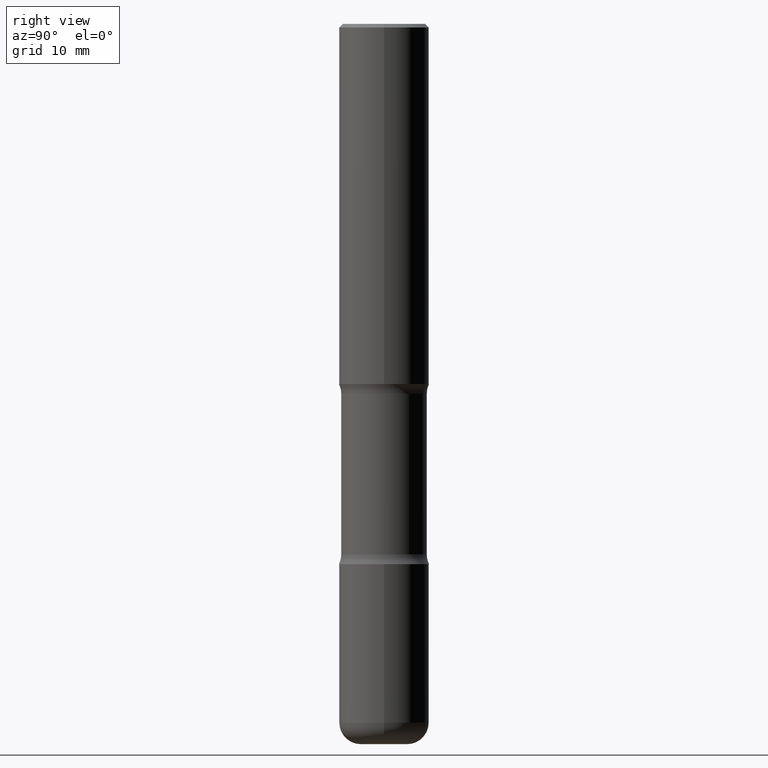
[diagram: clean part render]
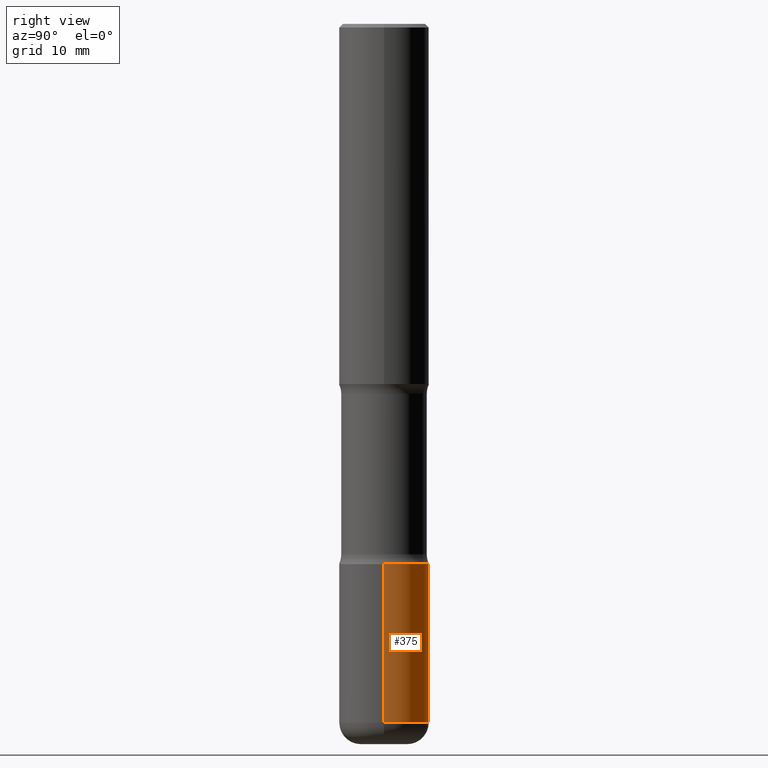
[diagram: same view with one face highlighted and labeled with its STEP entity id]
A machine part, right view. The second image highlights one B-rep face of the part: STEP entity #375.
In plain terms, the highlighted cylindrical surface (partial cylindrical patch) has radius 6.35 mm, axis along (-0, 0, 1).
Its self-contained STEP definition (entity closure, byte-faithful):
#4 = EDGE_CURVE ( 'NONE', #52, #246, #182, .T. ) ;
#27 = CARTESIAN_POINT ( 'NONE',  ( -0.2500000000000003331, 1.776356839400252831E-15, -1.229733772563727987E-29 ) ) ;
#29 = CARTESIAN_POINT ( 'NONE',  ( 0.2500000000000002776, -1.222018468595100619E-14, -3.000000000000000444 ) ) ;
#39 = AXIS2_PLACEMENT_3D ( 'NONE', #363, #532, #442 ) ;
#40 = ORIENTED_EDGE ( 'NONE', *, *, #170, .T. ) ;
#52 = VERTEX_POINT ( 'NONE', #443 ) ;
#72 = VERTEX_POINT ( 'NONE', #29 ) ;
#79 = DIRECTION ( 'NONE',  ( -2.445468806185136597E-29, 3.491481338843145583E-15, 1.000000000000000000 ) ) ;
#96 = DIRECTION ( 'NONE',  ( -2.445468806185136877E-29, 3.491481338843145188E-15, 1.000000000000000000 ) ) ;
#119 = AXIS2_PLACEMENT_3D ( 'NONE', #540, #79, #424 ) ;
#144 = DIRECTION ( 'NONE',  ( -2.445468806185136877E-29, 3.491481338843145188E-15, 1.000000000000000000 ) ) ;
#170 = EDGE_CURVE ( 'NONE', #426, #52, #247, .T. ) ;
#176 = FACE_OUTER_BOUND ( 'NONE', #380, .T. ) ;
#177 = LINE ( 'NONE', #324, #524 ) ;
#182 = LINE ( 'NONE', #27, #230 ) ;
#187 = ORIENTED_EDGE ( 'NONE', *, *, #422, .F. ) ;
#212 = CIRCLE ( 'NONE', #421, 0.2500000000000002776 ) ;
#230 = VECTOR ( 'NONE', #144, 39.37007874015748143 ) ;
#235 = CARTESIAN_POINT ( 'NONE',  ( 7.336406418555409790E-29, -1.047444401652943635E-14, -3.000000000000000444 ) ) ;
#246 = VERTEX_POINT ( 'NONE', #541 ) ;
#247 = CIRCLE ( 'NONE', #119, 0.2500000000000003886 ) ;
#263 = EDGE_CURVE ( 'NONE', #426, #72, #177, .T. ) ;
#297 = ORIENTED_EDGE ( 'NONE', *, *, #4, .T. ) ;
#324 = CARTESIAN_POINT ( 'NONE',  ( 0.2500000000000003331, -1.745740669421569044E-15, 1.219044193948985630E-29 ) ) ;
#363 = CARTESIAN_POINT ( 'NONE',  ( 0.000000000000000000, 0.000000000000000000, 0.000000000000000000 ) ) ;
#375 = ADVANCED_FACE ( 'NONE', ( #176 ), #483, .T. ) ;
#380 = EDGE_LOOP ( 'NONE', ( #40, #297, #187, #444 ) ) ;
#416 = DIRECTION ( 'NONE',  ( -2.445468806185136597E-29, 3.491481338843145583E-15, 1.000000000000000000 ) ) ;
#421 = AXIS2_PLACEMENT_3D ( 'NONE', #235, #416, #539 ) ;
#422 = EDGE_CURVE ( 'NONE', #72, #246, #212, .T. ) ;
#424 = DIRECTION ( 'NONE',  ( 1.000000000000000000, -6.982962677686267499E-15, 0.000000000000000000 ) ) ;
#426 = VERTEX_POINT ( 'NONE', #456 ) ;
#442 = DIRECTION ( 'NONE',  ( 1.000000000000000000, -6.982962677686266711E-15, 4.876176775795935793E-29 ) ) ;
#443 = CARTESIAN_POINT ( 'NONE',  ( -0.2500000000000003331, -1.177059075531115523E-14, -3.880000000000000782 ) ) ;
#444 = ORIENTED_EDGE ( 'NONE', *, *, #263, .F. ) ;
#456 = CARTESIAN_POINT ( 'NONE',  ( 0.2500000000000003331, -1.529268826413297711E-14, -3.880000000000000782 ) ) ;
#483 = CYLINDRICAL_SURFACE ( 'NONE', #39, 0.2500000000000003331 ) ;
#524 = VECTOR ( 'NONE', #96, 39.37007874015748143 ) ;
#532 = DIRECTION ( 'NONE',  ( -2.445468806185136597E-29, 3.491481338843145583E-15, 1.000000000000000000 ) ) ;
#539 = DIRECTION ( 'NONE',  ( 1.000000000000000000, -6.982962677686270655E-15, 0.000000000000000000 ) ) ;
#540 = CARTESIAN_POINT ( 'NONE',  ( 9.488418967998331206E-29, -1.354694759471140727E-14, -3.880000000000000782 ) ) ;
#541 = CARTESIAN_POINT ( 'NONE',  ( -0.2500000000000002776, -1.023433896622016898E-14, -3.000000000000000444 ) ) ;